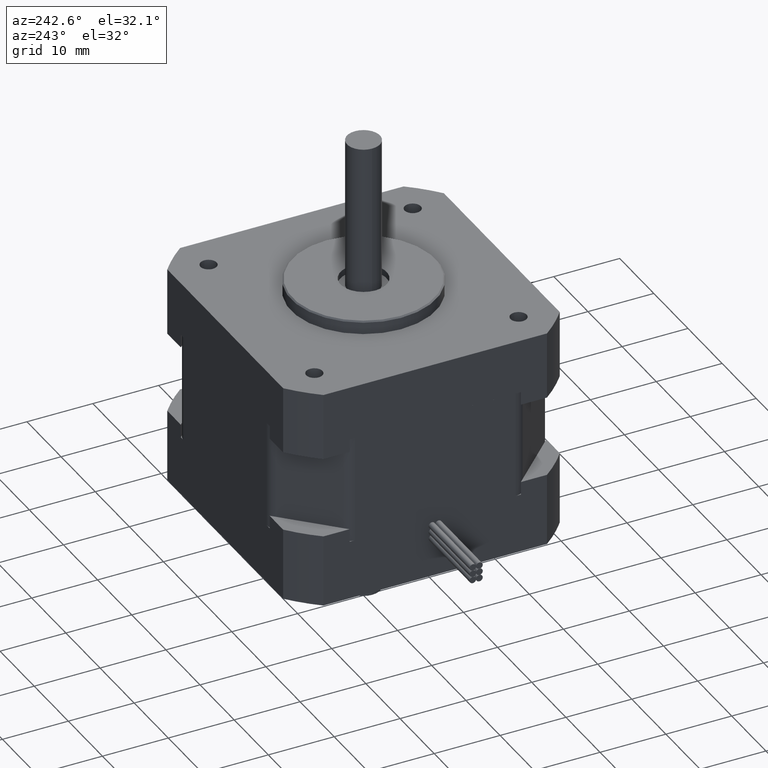
[diagram: clean part render]
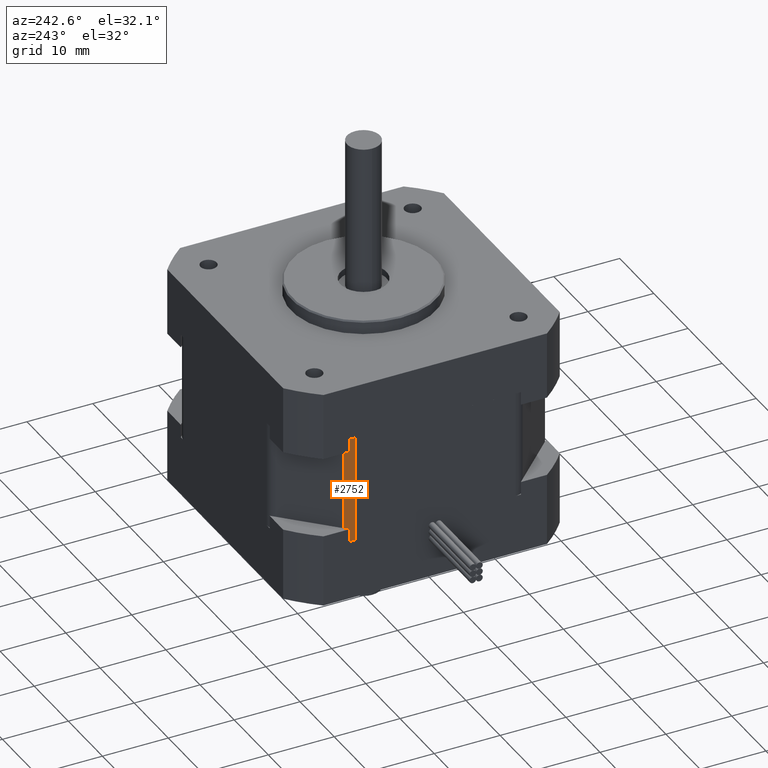
[diagram: same view with one face highlighted and labeled with its STEP entity id]
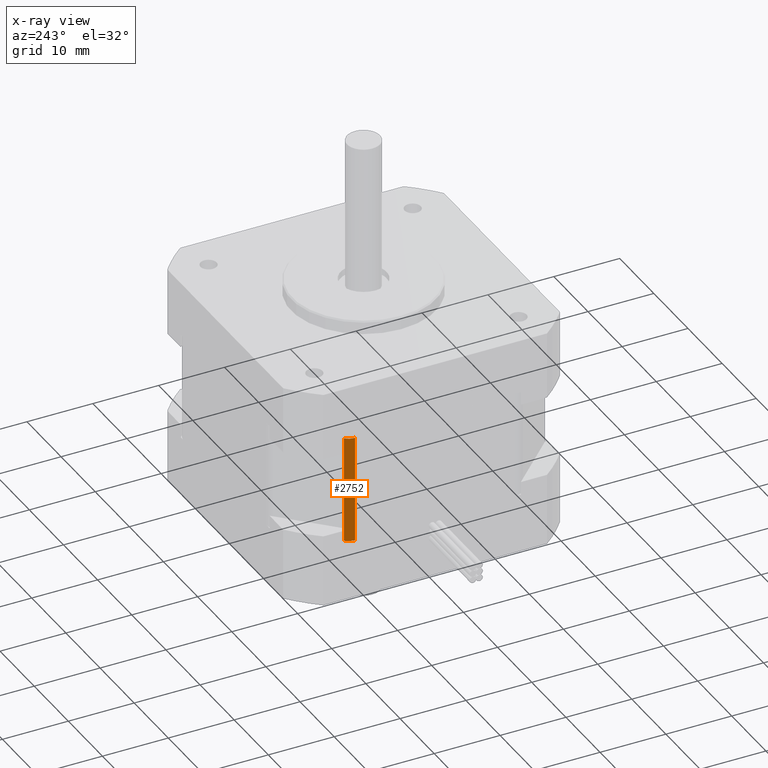
[diagram: x-ray of the same camera — body ghosted, the highlighted face saturated]
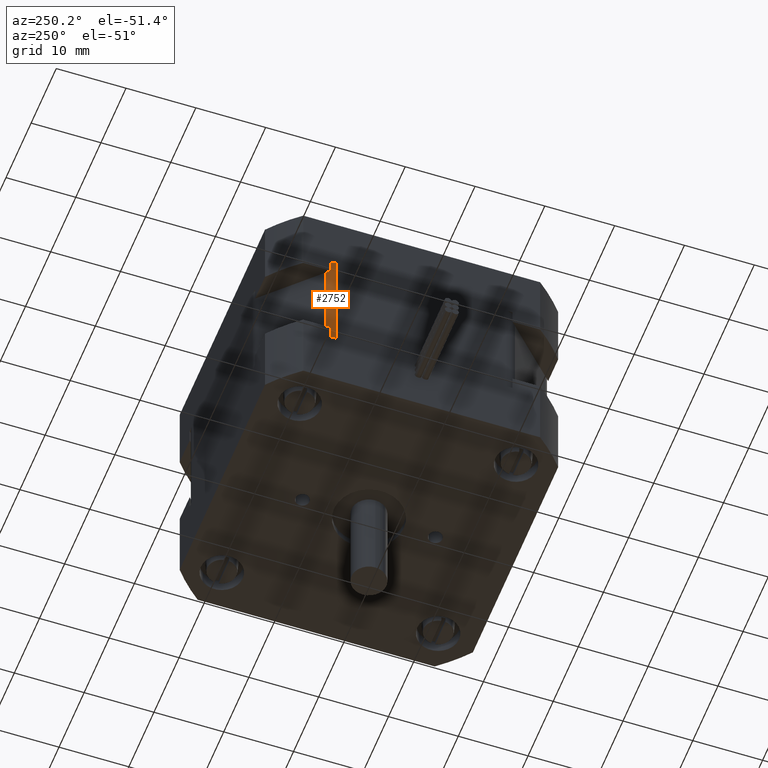
[diagram: same view with one face highlighted and labeled with its STEP entity id]
A machine part, auxiliary view. The second image highlights one B-rep face of the part: STEP entity #2752.
The next image is the same camera in x-ray: the body ghosted, the highlighted face saturated — about 0% of this face is hidden behind the body in this view.
A second angle (auxiliary view) of the same face is appended — the face is thin or edge-on in the first view.
In plain terms, the highlighted cylindrical surface (edge-blend (fillet) strip) has radius 2 mm, axis along (0, 0, 1).
Its self-contained STEP definition (entity closure, byte-faithful):
#232=FACE_OUTER_BOUND('',#429,.T.);
#429=EDGE_LOOP('',(#1775,#1776,#1777,#1778));
#694=LINE('',#4302,#852);
#695=LINE('',#4305,#853);
#852=VECTOR('',#3362,10.);
#853=VECTOR('',#3365,10.);
#1010=CIRCLE('',#2967,2.);
#1011=CIRCLE('',#2968,2.);
#1187=VERTEX_POINT('',#4298);
#1188=VERTEX_POINT('',#4299);
#1189=VERTEX_POINT('',#4301);
#1190=VERTEX_POINT('',#4303);
#1424=EDGE_CURVE('',#1187,#1188,#1010,.T.);
#1425=EDGE_CURVE('',#1188,#1189,#694,.T.);
#1426=EDGE_CURVE('',#1189,#1190,#1011,.T.);
#1427=EDGE_CURVE('',#1190,#1187,#695,.T.);
#1775=ORIENTED_EDGE('',*,*,#1424,.T.);
#1776=ORIENTED_EDGE('',*,*,#1425,.T.);
#1777=ORIENTED_EDGE('',*,*,#1426,.T.);
#1778=ORIENTED_EDGE('',*,*,#1427,.T.);
#2505=CYLINDRICAL_SURFACE('',#2966,2.);
#2752=ADVANCED_FACE('',(#232),#2505,.T.);
#2966=AXIS2_PLACEMENT_3D('',#4297,#3358,#3359);
#2967=AXIS2_PLACEMENT_3D('',#4300,#3360,#3361);
#2968=AXIS2_PLACEMENT_3D('',#4304,#3363,#3364);
#3358=DIRECTION('center_axis',(0.,0.,1.));
#3359=DIRECTION('ref_axis',(-0.923879532511287,0.38268343236509,0.));
#3360=DIRECTION('center_axis',(0.,0.,-1.));
#3361=DIRECTION('ref_axis',(-0.923879532511287,0.38268343236509,0.));
#3362=DIRECTION('',(0.,0.,-1.));
#3363=DIRECTION('center_axis',(0.,0.,1.));
#3364=DIRECTION('ref_axis',(-0.923879532511287,0.38268343236509,0.));
#3365=DIRECTION('',(0.,0.,1.));
#4297=CARTESIAN_POINT('Origin',(-19.,12.1715728752538,0.));
#4298=CARTESIAN_POINT('',(-21.,12.1715728752538,8.15));
#4299=CARTESIAN_POINT('',(-20.4142135623731,13.5857864376269,8.15));
#4300=CARTESIAN_POINT('Origin',(-19.,12.1715728752538,8.15));
#4301=CARTESIAN_POINT('',(-20.4142135623731,13.5857864376269,-8.15));
#4302=CARTESIAN_POINT('',(-20.4142135623731,13.5857864376269,0.));
#4303=CARTESIAN_POINT('',(-21.,12.1715728752538,-8.15));
#4304=CARTESIAN_POINT('Origin',(-19.,12.1715728752538,-8.15));
#4305=CARTESIAN_POINT('',(-21.,12.1715728752538,0.));